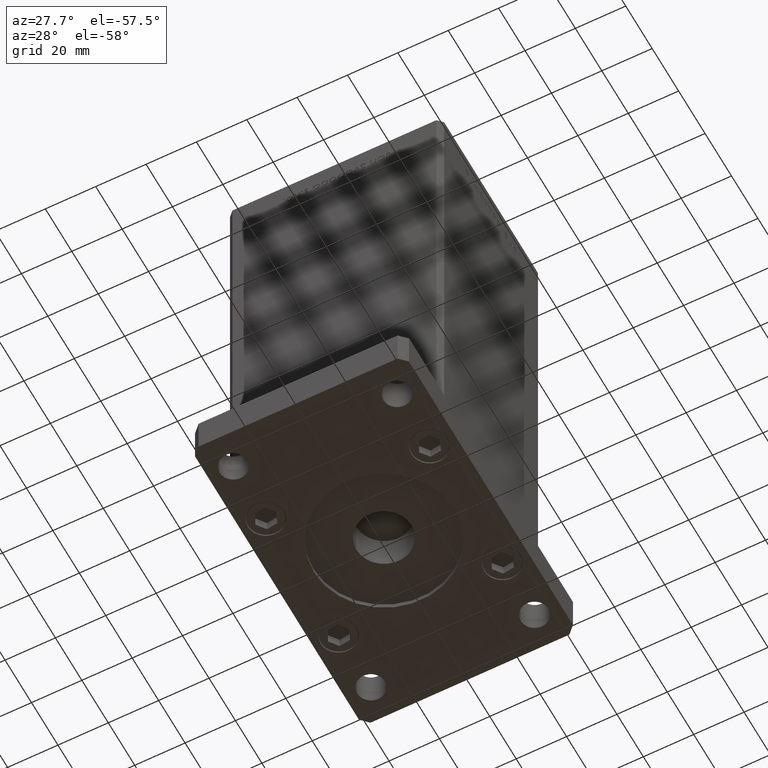
[diagram: clean part render]
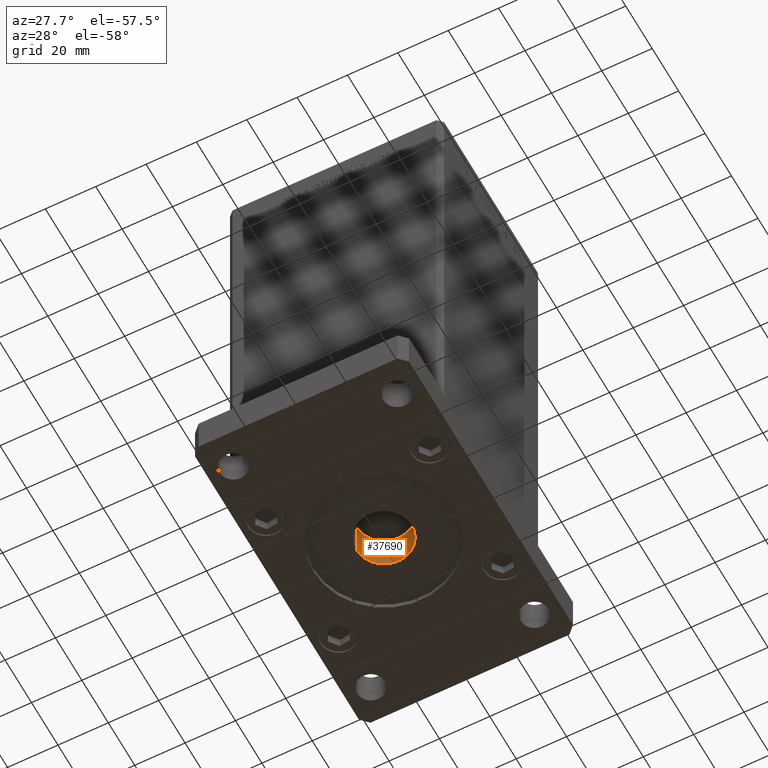
[diagram: same view with one face highlighted and labeled with its STEP entity id]
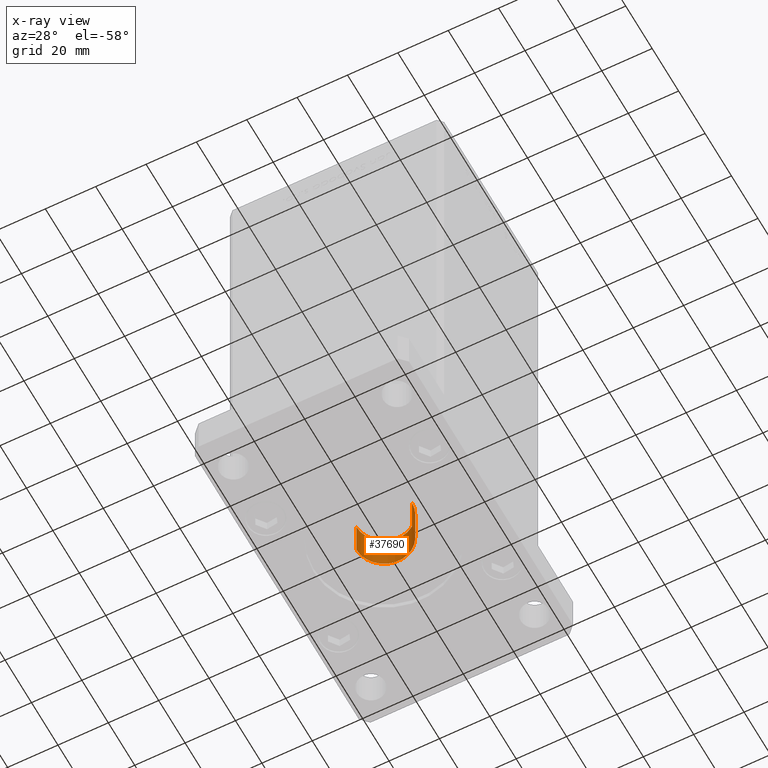
[diagram: x-ray of the same camera — body ghosted, the highlighted face saturated]
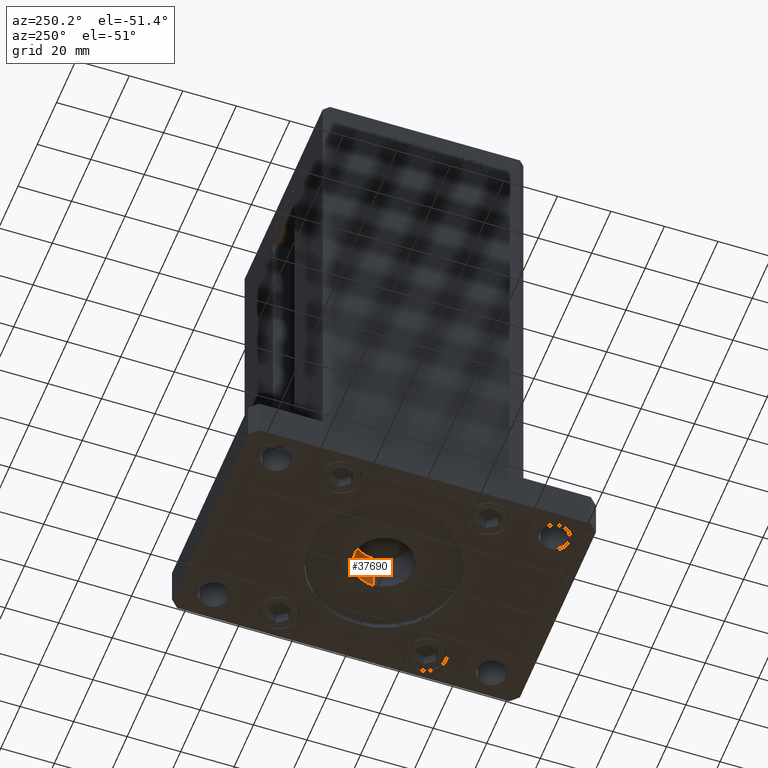
[diagram: same view with one face highlighted and labeled with its STEP entity id]
A machine part, auxiliary view. The second image highlights one B-rep face of the part: STEP entity #37690.
The next image is the same camera in x-ray: the body ghosted, the highlighted face saturated — about 0% of this face is hidden behind the body in this view.
A second angle (auxiliary view) of the same face is appended — the face is thin or edge-on in the first view.
In plain terms, the highlighted cylindrical surface (edge-blend (fillet) strip) has radius 11 mm, axis along (0, 0, 1).
Its self-contained STEP definition (entity closure, byte-faithful):
#234 = CARTESIAN_POINT ( 'NONE',  ( 11.00000000000000000, 0.000000000000000000, 2.000000000000000000 ) ) ;
#320 = ORIENTED_EDGE ( 'NONE', *, *, #28316, .F. ) ;
#458 = LINE ( 'NONE', #36845, #1300 ) ;
#1300 = VECTOR ( 'NONE', #12838, 1000.000000000000000 ) ;
#1919 = LINE ( 'NONE', #46689, #27927 ) ;
#2338 = CIRCLE ( 'NONE', #9225, 11.00000000000000000 ) ;
#2875 = VERTEX_POINT ( 'NONE', #40959 ) ;
#5532 = EDGE_CURVE ( 'NONE', #32448, #2875, #2338, .T. ) ;
#6615 = DIRECTION ( 'NONE',  ( 1.000000000000000000, 0.000000000000000000, 0.000000000000000000 ) ) ;
#9225 = AXIS2_PLACEMENT_3D ( 'NONE', #34675, #18740, #6615 ) ;
#11273 = CARTESIAN_POINT ( 'NONE',  ( 0.000000000000000000, 0.000000000000000000, 0.000000000000000000 ) ) ;
#12838 = DIRECTION ( 'NONE',  ( -0.000000000000000000, -0.000000000000000000, 1.000000000000000000 ) ) ;
#16325 = CARTESIAN_POINT ( 'NONE',  ( -11.00000000000000000, 1.347111479062088405E-15, 2.000000000000000000 ) ) ;
#18126 = CARTESIAN_POINT ( 'NONE',  ( 0.000000000000000000, 0.000000000000000000, 2.000000000000000000 ) ) ;
#18740 = DIRECTION ( 'NONE',  ( 0.000000000000000000, 0.000000000000000000, 1.000000000000000000 ) ) ;
#19211 = CIRCLE ( 'NONE', #45088, 11.00000000000000000 ) ;
#21631 = DIRECTION ( 'NONE',  ( -0.000000000000000000, -0.000000000000000000, 1.000000000000000000 ) ) ;
#21635 = ORIENTED_EDGE ( 'NONE', *, *, #36530, .F. ) ;
#22679 = DIRECTION ( 'NONE',  ( -1.000000000000000000, 0.000000000000000000, 0.000000000000000000 ) ) ;
#23930 = FACE_OUTER_BOUND ( 'NONE', #52427, .T. ) ;
#24529 = AXIS2_PLACEMENT_3D ( 'NONE', #11273, #35814, #40643 ) ;
#26689 = DIRECTION ( 'NONE',  ( -0.000000000000000000, -0.000000000000000000, 1.000000000000000000 ) ) ;
#26708 = VERTEX_POINT ( 'NONE', #16325 ) ;
#27927 = VECTOR ( 'NONE', #26689, 1000.000000000000000 ) ;
#28316 = EDGE_CURVE ( 'NONE', #33174, #26708, #19211, .T. ) ;
#31253 = EDGE_CURVE ( 'NONE', #33174, #32448, #458, .T. ) ;
#32448 = VERTEX_POINT ( 'NONE', #39708 ) ;
#33174 = VERTEX_POINT ( 'NONE', #234 ) ;
#34675 = CARTESIAN_POINT ( 'NONE',  ( 0.000000000000000000, 0.000000000000000000, 17.00000000000000000 ) ) ;
#35814 = DIRECTION ( 'NONE',  ( -0.000000000000000000, -0.000000000000000000, 1.000000000000000000 ) ) ;
#36530 = EDGE_CURVE ( 'NONE', #26708, #2875, #1919, .T. ) ;
#36845 = CARTESIAN_POINT ( 'NONE',  ( 11.00000000000000000, 0.000000000000000000, 0.000000000000000000 ) ) ;
#37690 = ADVANCED_FACE ( 'NONE', ( #23930 ), #53070, .F. ) ;
#37917 = ORIENTED_EDGE ( 'NONE', *, *, #5532, .T. ) ;
#39708 = CARTESIAN_POINT ( 'NONE',  ( 11.00000000000000000, 0.000000000000000000, 17.00000000000000000 ) ) ;
#40643 = DIRECTION ( 'NONE',  ( 1.000000000000000000, 0.000000000000000000, 0.000000000000000000 ) ) ;
#40676 = ORIENTED_EDGE ( 'NONE', *, *, #31253, .T. ) ;
#40959 = CARTESIAN_POINT ( 'NONE',  ( -11.00000000000000000, 1.347111479062088405E-15, 17.00000000000000000 ) ) ;
#45088 = AXIS2_PLACEMENT_3D ( 'NONE', #18126, #21631, #22679 ) ;
#46689 = CARTESIAN_POINT ( 'NONE',  ( -11.00000000000000000, 1.347111479062088405E-15, 0.000000000000000000 ) ) ;
#52427 = EDGE_LOOP ( 'NONE', ( #21635, #320, #40676, #37917 ) ) ;
#53070 = CYLINDRICAL_SURFACE ( 'NONE', #24529, 11.00000000000000000 ) ;